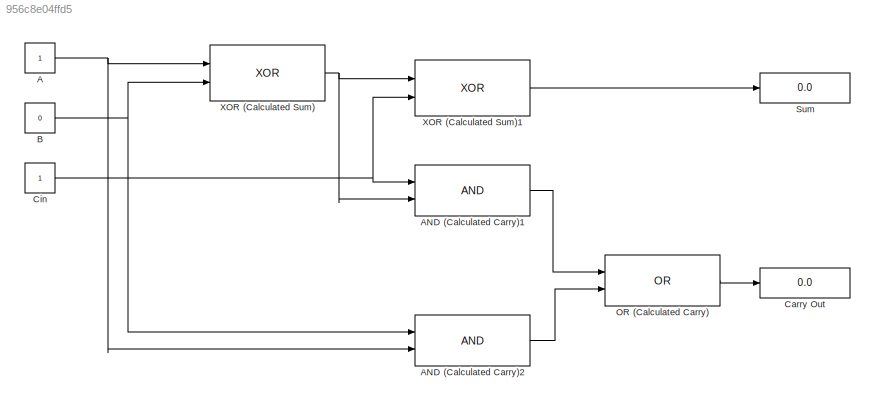
MODEL slx_956c8e04ffd5
KIND model
BLOCK [Constant] A
BLOCK [Logic] AND (Calculated Carry)1
  AllPortsSameDT = off
  OutDataTypeStr = boolean
  Ports = [2, 1]
BLOCK [Logic] AND (Calculated Carry)2
  AllPortsSameDT = off
  OutDataTypeStr = boolean
  Ports = [2, 1]
BLOCK [Constant] B
  Value = 0
BLOCK [Display] Carry Out
  Decimation = 1
  Ports = [1]
BLOCK [Constant] Cin
BLOCK [Logic] OR (Calculated Carry)
  AllPortsSameDT = off
  Operator = OR
  OutDataTypeStr = boolean
  Ports = [2, 1]
BLOCK [Display] Sum
  Decimation = 1
  Ports = [1]
BLOCK [Logic] XOR (Calculated Sum)
  AllPortsSameDT = off
  Operator = XOR
  OutDataTypeStr = boolean
  Ports = [2, 1]
BLOCK [Logic] XOR (Calculated Sum)1
  AllPortsSameDT = off
  Operator = XOR
  OutDataTypeStr = boolean
  Ports = [2, 1]
NET A:1 -> AND (Calculated Carry)2:2, XOR (Calculated Sum):1
LINE AND (Calculated Carry)1:1 -> OR (Calculated Carry):1
LINE AND (Calculated Carry)2:1 -> OR (Calculated Carry):2
NET B:1 -> AND (Calculated Carry)2:1, XOR (Calculated Sum):2
NET Cin:1 -> AND (Calculated Carry)1:1, XOR (Calculated Sum)1:2
LINE OR (Calculated Carry):1 -> Carry Out:1
LINE XOR (Calculated Sum)1:1 -> Sum:1
NET XOR (Calculated Sum):1 -> AND (Calculated Carry)1:2, XOR (Calculated Sum)1:1
note: NET lines group one-source signal fan-out (src -> all destinations, sorted); 1:1 wires keep LINE
